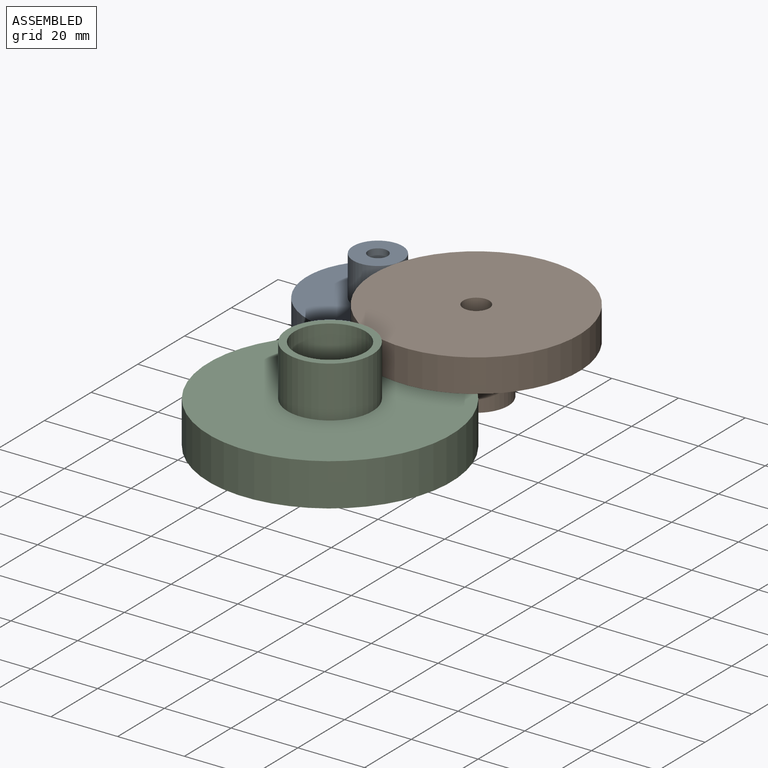
[diagram: assembled view]
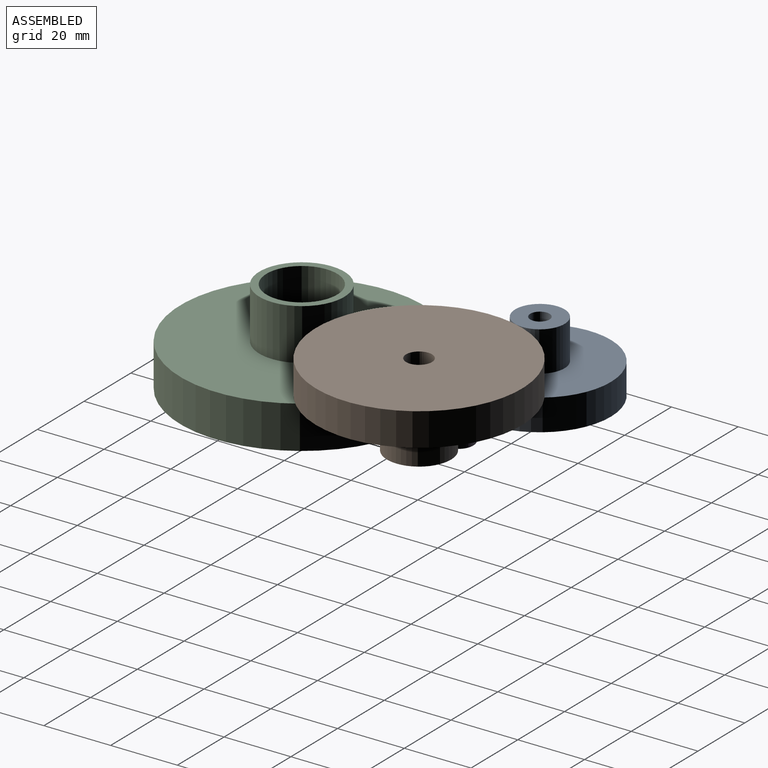
[diagram: assembled view, second angle]
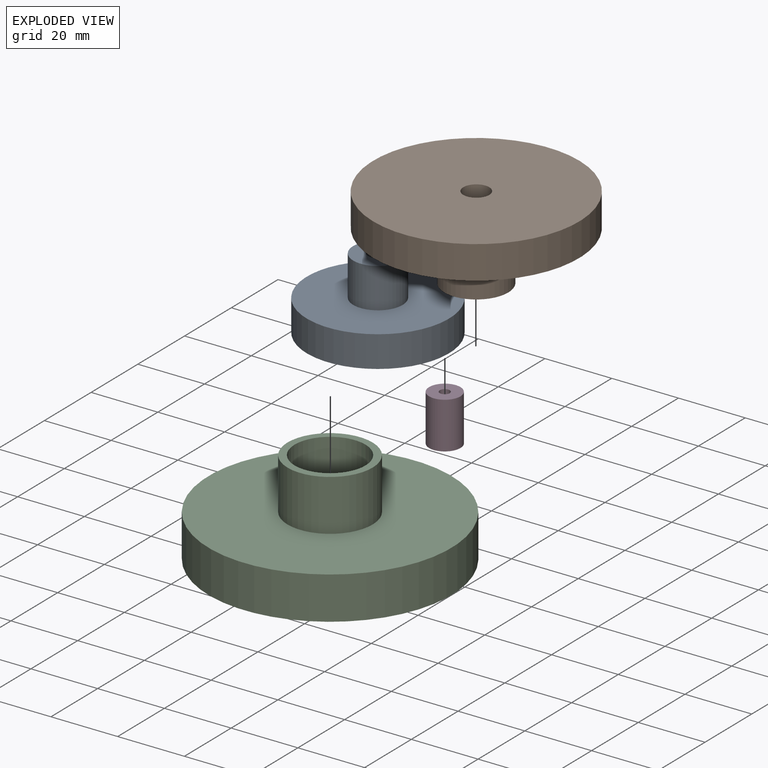
[diagram: exploded view]
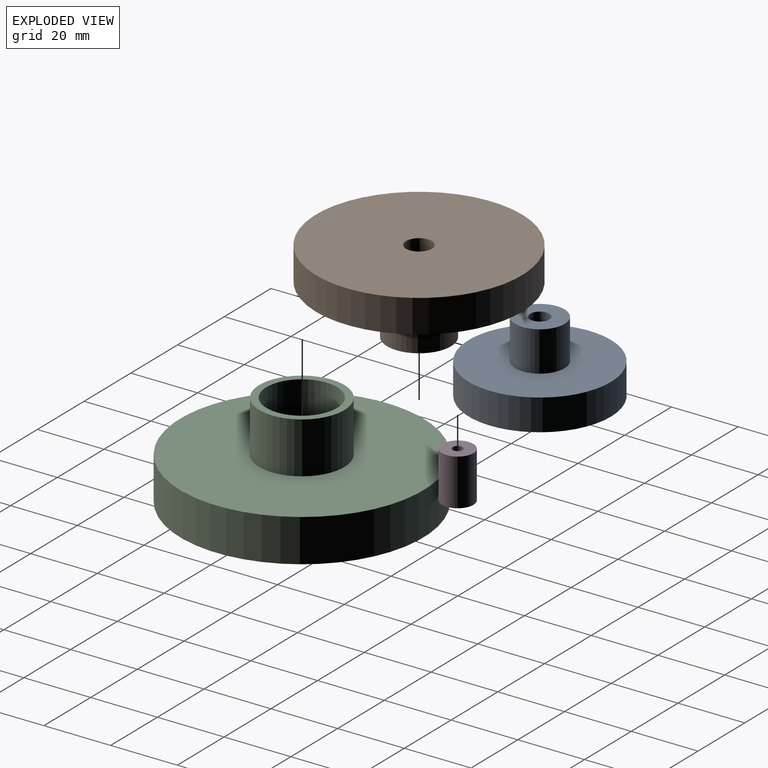
[diagram: exploded view, second angle]
ASSEMBLY  parts=4 mates=3
PART A: 6 faces, bbox 42.6x42.6x21.4 mm
  f0: cylinder r=21.3mm len=42.6mm, axis (0,0,1), area 1258mm2, adj f2,f3
  f1: cylinder r=2.9mm len=21.4mm, axis (0,0,1), area 389.9mm2, adj f2,f5
  f2: plane 42.6x42.6mm, normal (0,0,-1), area 1398.9mm2, adj f0,f1
  f3: plane 42.6x42.6mm, normal (0,0,1), area 1253.3mm2, adj f0,f4
  f4: cylinder r=7.4mm len=14.8mm, axis (0,0,-1), area 557.9mm2, adj f3,f5
  f5: plane 14.8x14.8mm, normal (0,0,1), area 145.6mm2, adj f1,f4
PART B: 6 faces, bbox 61.7x61.7x24.9 mm
  f0: cylinder r=30.85mm len=61.7mm, axis (0,0,1), area 1919mm2, adj f2,f3
  f1: cylinder r=3.9mm len=24.9mm, axis (0,0,1), area 610.2mm2, adj f3,f5
  f2: plane 61.7x61.7mm, normal (0,0,-1), area 2700.4mm2, adj f0,f4
  f3: plane 61.7x61.7mm, normal (0,0,1), area 2942.1mm2, adj f0,f1
  f4: cylinder r=9.6mm len=19.2mm, axis (0,0,1), area 904.8mm2, adj f2,f5
  f5: plane 19.2x19.2mm, normal (0,0,-1), area 241.7mm2, adj f1,f4
PART C: 6 faces, bbox 72.8x72.8x28.2 mm
  f0: cylinder r=36.4mm len=72.8mm, axis (0,0,-1), area 2927.5mm2, adj f2,f3
  f1: cylinder r=10.6mm len=28.2mm, axis (0,0,-1), area 1878.2mm2, adj f3,f5
  f2: plane 72.8x72.8mm, normal (0,0,1), area 3651.8mm2, adj f0,f4
  f3: plane 72.8x72.8mm, normal (0,0,-1), area 3809.5mm2, adj f0,f1
  f4: cylinder r=12.75mm len=25.5mm, axis (0,0,-1), area 1233.7mm2, adj f2,f5
  f5: plane 25.5x25.5mm, normal (0,0,1), area 157.7mm2, adj f1,f4
PART D: 4 faces, bbox 9.4x9.4x14 mm
  f0: cylinder r=1.5mm len=14mm, axis (0,0,-1), area 131.9mm2, adj f2,f3
  f1: cylinder r=4.7mm len=14mm, axis (0,0,-1), area 413.4mm2, adj f2,f3
  f2: plane 9.4x9.4mm, normal (0,0,1), area 62.3mm2, adj f0,f1
  f3: plane 9.4x9.4mm, normal (0,0,-1), area 62.3mm2, adj f0,f1
PLACE A rot(axis=(0,0,-1),154.7deg) t=(-1.51,18.23,0)mm
PLACE B rot(axis=(0,0,-1),155.5deg) t=(70.25,23.3,0)mm
PLACE C rot(axis=(0,0,-1),93.3deg) t=(5.2,62.57,0)mm
PLACE D at identity fixed
MATE planar D.f1 <-> A.f0  axis (0,0,1) through (0,0,14)mm
MATE planar B.f4 <-> C.f0  axis (0,0,-1) through (11.79,-3.34,1.1)mm
MATE planar A.f4 <-> B.f0  axis (0,0,1) through (-25.01,7.11,26)mm
